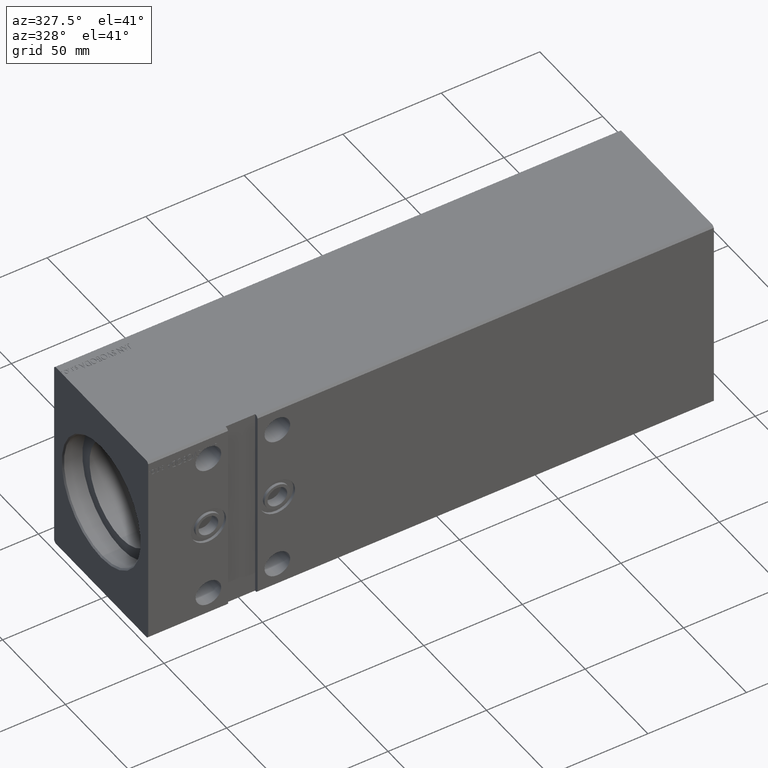
[diagram: clean part render]
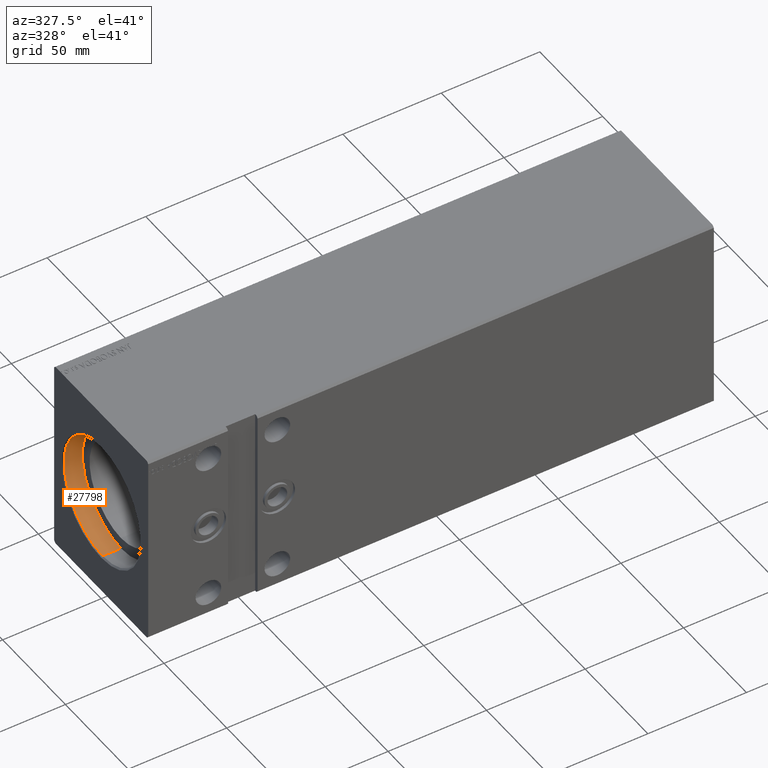
[diagram: same view with one face highlighted and labeled with its STEP entity id]
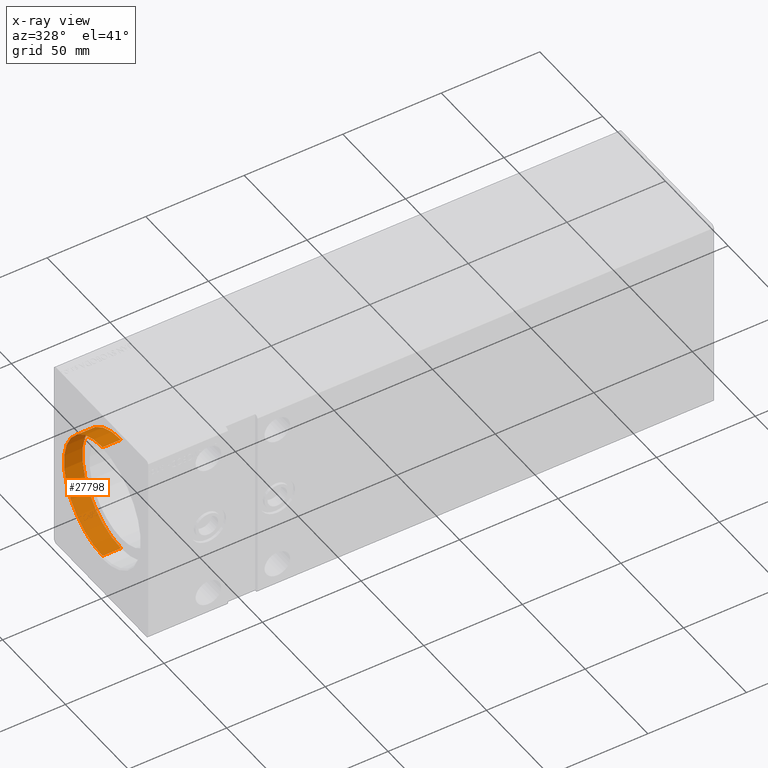
[diagram: x-ray of the same camera — body ghosted, the highlighted face saturated]
A machine part, auxiliary view. The second image highlights one B-rep face of the part: STEP entity #27798.
The next image is the same camera in x-ray: the body ghosted, the highlighted face saturated — about 0% of this face is hidden behind the body in this view.
In plain terms, the highlighted cylindrical surface (partial cylindrical patch) has radius 30.75 mm, axis along (-1, -0, -0).
Its self-contained STEP definition (entity closure, byte-faithful):
#2150 = DIRECTION ( 'NONE',  ( -1.000000000000000000, 0.000000000000000000, 0.000000000000000000 ) ) ;
#2311 = CARTESIAN_POINT ( 'NONE',  ( 10.00000000000000000, 0.000000000000000000, 0.000000000000000000 ) ) ;
#2353 = LINE ( 'NONE', #5651, #35959 ) ;
#2919 = FACE_OUTER_BOUND ( 'NONE', #13228, .T. ) ;
#3147 = ORIENTED_EDGE ( 'NONE', *, *, #24175, .F. ) ;
#5078 = EDGE_CURVE ( 'NONE', #29377, #30585, #15202, .T. ) ;
#5170 = CIRCLE ( 'NONE', #28177, 30.75000000000000355 ) ;
#5417 = AXIS2_PLACEMENT_3D ( 'NONE', #8942, #2150, #34269 ) ;
#5612 = CYLINDRICAL_SURFACE ( 'NONE', #28786, 30.75000000000000355 ) ;
#5651 = CARTESIAN_POINT ( 'NONE',  ( 10.00000000000000000, 3.765788907378111328E-15, -30.75000000000000355 ) ) ;
#6453 = EDGE_CURVE ( 'NONE', #29377, #16957, #38283, .T. ) ;
#8942 = CARTESIAN_POINT ( 'NONE',  ( 10.00000000000000000, 0.000000000000000000, 0.000000000000000000 ) ) ;
#10430 = ORIENTED_EDGE ( 'NONE', *, *, #6453, .F. ) ;
#13228 = EDGE_LOOP ( 'NONE', ( #3147, #10430, #40485, #32731 ) ) ;
#15202 = LINE ( 'NONE', #27766, #34962 ) ;
#16957 = VERTEX_POINT ( 'NONE', #38838 ) ;
#20132 = CARTESIAN_POINT ( 'NONE',  ( 0.7000000000000790035, 3.765788907378111328E-15, -30.75000000000000355 ) ) ;
#21380 = CARTESIAN_POINT ( 'NONE',  ( 0.7000000000000790035, 0.000000000000000000, 0.000000000000000000 ) ) ;
#21383 = CARTESIAN_POINT ( 'NONE',  ( 10.00000000000000000, 0.000000000000000000, 30.75000000000000355 ) ) ;
#21974 = DIRECTION ( 'NONE',  ( -1.000000000000000000, 0.000000000000000000, 0.000000000000000000 ) ) ;
#24175 = EDGE_CURVE ( 'NONE', #16957, #27942, #2353, .T. ) ;
#27627 = DIRECTION ( 'NONE',  ( 0.000000000000000000, 0.000000000000000000, 1.000000000000000000 ) ) ;
#27661 = DIRECTION ( 'NONE',  ( -1.000000000000000000, -0.000000000000000000, -0.000000000000000000 ) ) ;
#27766 = CARTESIAN_POINT ( 'NONE',  ( 10.00000000000000000, 0.000000000000000000, 30.75000000000000355 ) ) ;
#27798 = ADVANCED_FACE ( 'NONE', ( #2919 ), #5612, .F. ) ;
#27942 = VERTEX_POINT ( 'NONE', #20132 ) ;
#28177 = AXIS2_PLACEMENT_3D ( 'NONE', #21380, #21974, #40744 ) ;
#28786 = AXIS2_PLACEMENT_3D ( 'NONE', #2311, #30512, #27627 ) ;
#29377 = VERTEX_POINT ( 'NONE', #21383 ) ;
#30512 = DIRECTION ( 'NONE',  ( -1.000000000000000000, -0.000000000000000000, -0.000000000000000000 ) ) ;
#30585 = VERTEX_POINT ( 'NONE', #36184 ) ;
#31756 = EDGE_CURVE ( 'NONE', #30585, #27942, #5170, .T. ) ;
#32731 = ORIENTED_EDGE ( 'NONE', *, *, #31756, .T. ) ;
#34269 = DIRECTION ( 'NONE',  ( 0.000000000000000000, 0.000000000000000000, 1.000000000000000000 ) ) ;
#34962 = VECTOR ( 'NONE', #40354, 1000.000000000000000 ) ;
#35959 = VECTOR ( 'NONE', #27661, 1000.000000000000000 ) ;
#36184 = CARTESIAN_POINT ( 'NONE',  ( 0.7000000000000790035, 0.000000000000000000, 30.75000000000000355 ) ) ;
#38283 = CIRCLE ( 'NONE', #5417, 30.75000000000000355 ) ;
#38838 = CARTESIAN_POINT ( 'NONE',  ( 10.00000000000000000, 3.765788907378111328E-15, -30.75000000000000355 ) ) ;
#40354 = DIRECTION ( 'NONE',  ( -1.000000000000000000, -0.000000000000000000, -0.000000000000000000 ) ) ;
#40485 = ORIENTED_EDGE ( 'NONE', *, *, #5078, .T. ) ;
#40744 = DIRECTION ( 'NONE',  ( 0.000000000000000000, 0.000000000000000000, -1.000000000000000000 ) ) ;